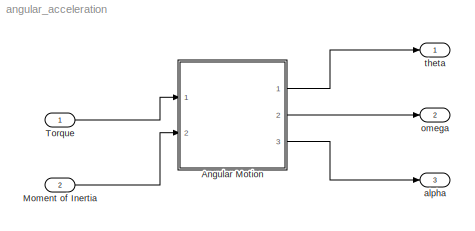
MODEL angular_acceleration
KIND model
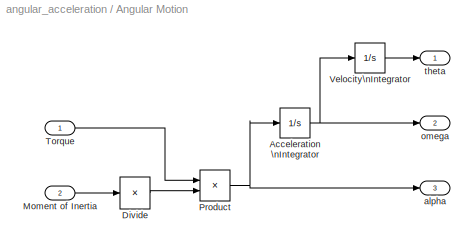
BLOCK [SubSystem] Angular Motion
  FunctionWithSeparateData = off
  MaskHideContents = off
  MinAlgLoopOccurrences = off
  Opaque = off
  Ports = [2, 3]
  PropExecContextOutsideSubsystem = off
  RTWSystemCode = Auto
  RequestExecContextInheritance = off
BLOCK [Integrator] Angular Motion/Acceleration \nIntegrator
  Ports = [1, 1]
BLOCK [Product] Angular Motion/Divide
  InputSameDT = off
  Inputs = /
  OutDataType = sfix(16)
  OutDataTypeMode = Inherit via internal rule
  OutDataTypeStr = Inherit: Inherit via internal rule
  OutScaling = 2^-10
  Ports = [1, 1]
  RndMeth = Floor
  SaturateOnIntegerOverflow = off
BLOCK [Inport] Angular Motion/Moment of Inertia
  IconDisplay = Port number
  OutDataType = sfix(16)
  OutScaling = 2^0
  Port = 2
BLOCK [Product] Angular Motion/Product
  InputSameDT = off
  OutDataType = sfix(16)
  OutDataTypeMode = Inherit via internal rule
  OutDataTypeStr = Inherit: Inherit via internal rule
  OutScaling = 2^0
  Ports = [2, 1]
  SaturateOnIntegerOverflow = off
BLOCK [Inport] Angular Motion/Torque
  IconDisplay = Port number
  OutDataType = sfix(16)
  OutScaling = 2^0
BLOCK [Integrator] Angular Motion/Velocity\nIntegrator
  Ports = [1, 1]
BLOCK [Outport] Angular Motion/alpha
  IconDisplay = Port number
  OutDataType = sfix(16)
  OutScaling = 2^0
  Port = 3
BLOCK [Outport] Angular Motion/omega
  IconDisplay = Port number
  OutDataType = sfix(16)
  OutScaling = 2^0
  Port = 2
BLOCK [Outport] Angular Motion/theta
  IconDisplay = Port number
  OutDataType = sfix(16)
  OutScaling = 2^0
BLOCK [Inport] Moment of Inertia
  IconDisplay = Port number
  OutDataType = sfix(16)
  OutScaling = 2^0
  Port = 2
BLOCK [Inport] Torque
  IconDisplay = Port number
  OutDataType = sfix(16)
  OutScaling = 2^0
BLOCK [Outport] alpha
  IconDisplay = Port number
  OutDataType = sfix(16)
  OutScaling = 2^0
  Port = 3
BLOCK [Outport] omega
  IconDisplay = Port number
  OutDataType = sfix(16)
  OutScaling = 2^0
  Port = 2
BLOCK [Outport] theta
  IconDisplay = Port number
  OutDataType = sfix(16)
  OutScaling = 2^0
NET Angular Motion/Acceleration \nIntegrator:1 -> Angular Motion/Velocity\nIntegrator:1, Angular Motion/omega:1
LINE Angular Motion/Divide:1 -> Angular Motion/Product:2
LINE Angular Motion/Moment of Inertia:1 -> Angular Motion/Divide:1
NET Angular Motion/Product:1 -> Angular Motion/Acceleration \nIntegrator:1, Angular Motion/alpha:1
LINE Angular Motion/Torque:1 -> Angular Motion/Product:1
LINE Angular Motion/Velocity\nIntegrator:1 -> Angular Motion/theta:1
LINE Angular Motion:1 -> theta:1
LINE Angular Motion:2 -> omega:1
LINE Angular Motion:3 -> alpha:1
LINE Moment of Inertia:1 -> Angular Motion:2
LINE Torque:1 -> Angular Motion:1
note: NET lines group one-source signal fan-out (src -> all destinations, sorted); 1:1 wires keep LINE
